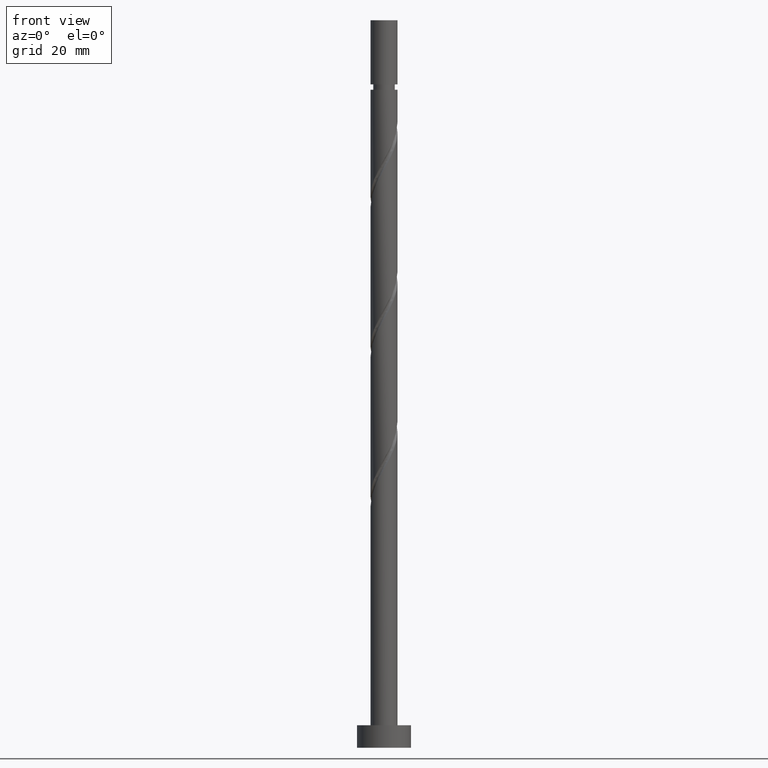
[diagram: clean part render]
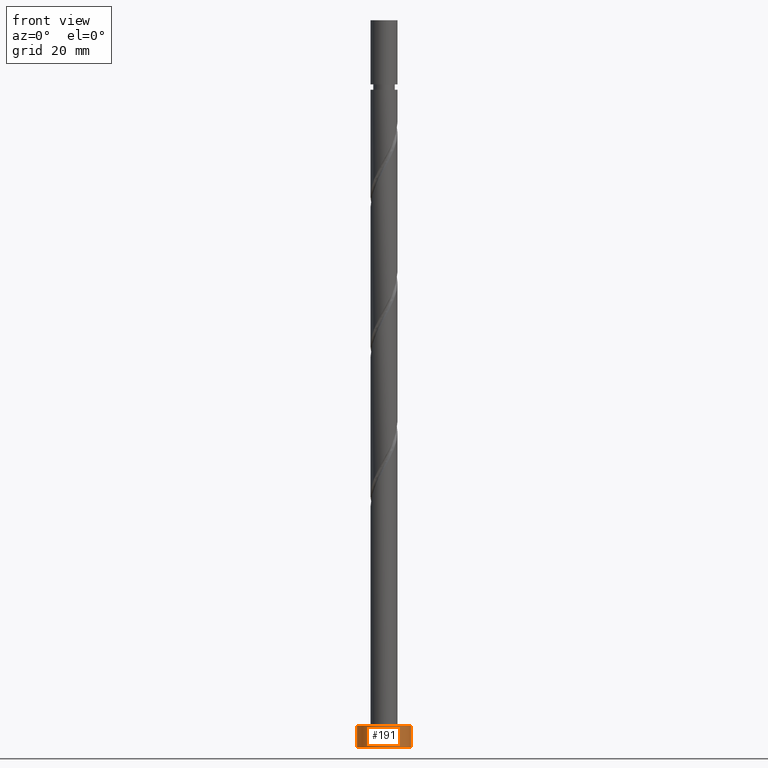
[diagram: same view with one face highlighted and labeled with its STEP entity id]
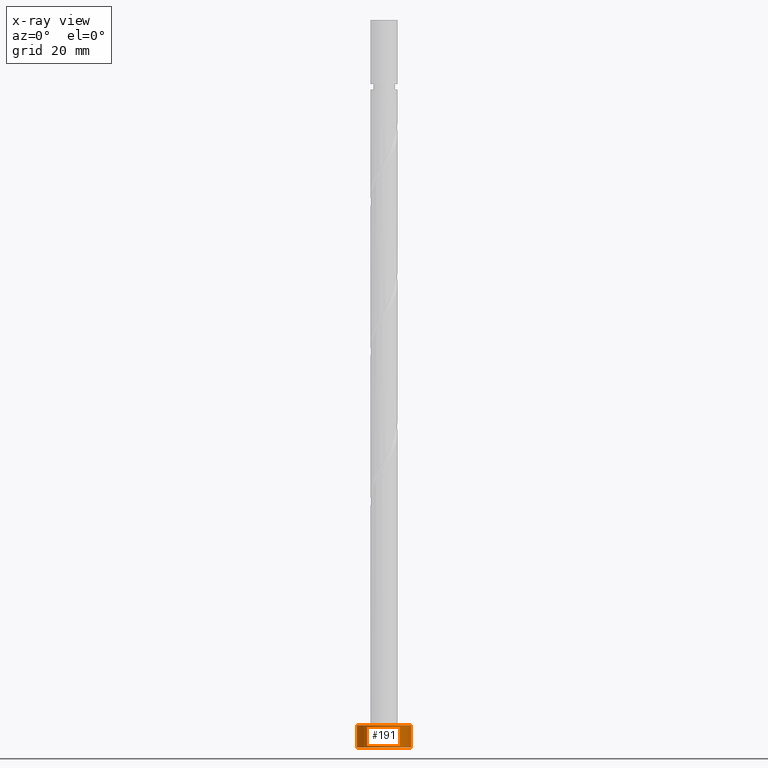
[diagram: x-ray of the same camera — body ghosted, the highlighted face saturated]
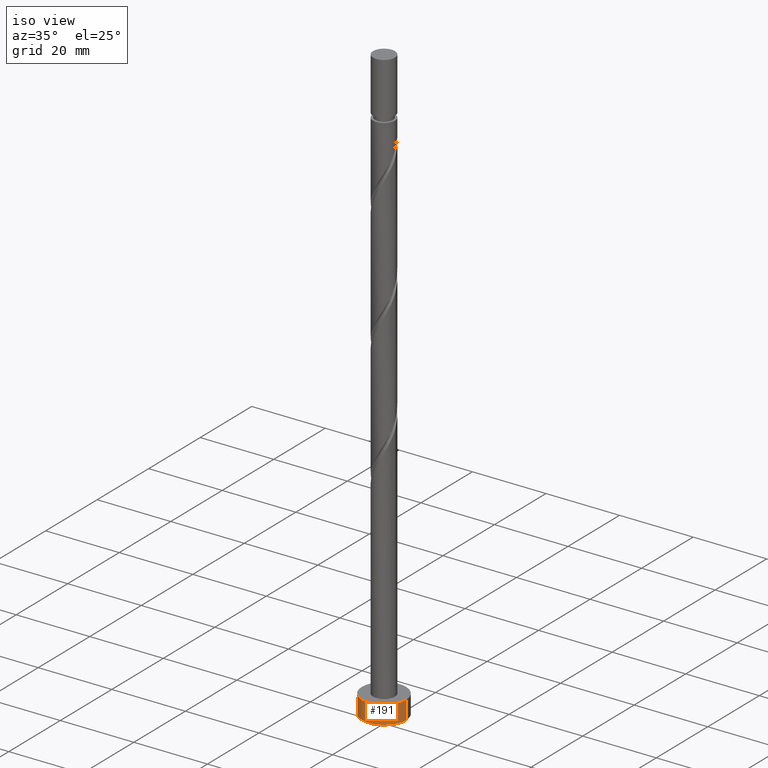
[diagram: same view with one face highlighted and labeled with its STEP entity id]
A machine part, front view. The second image highlights one B-rep face of the part: STEP entity #191.
The next image is the same camera in x-ray: the body ghosted, the highlighted face saturated — about 0% of this face is hidden behind the body in this view.
A second angle (iso view) of the same face is appended — the face is thin or edge-on in the first view.
In plain terms, the highlighted cylindrical surface (edge-blend (fillet) strip) has radius 6 mm, axis along (-0, -0, -1).
Its self-contained STEP definition (entity closure, byte-faithful):
#13 = VERTEX_POINT ( 'NONE', #1119 ) ;
#140 = EDGE_CURVE ( 'NONE', #872, #1266, #1082, .T. ) ;
#191 = ADVANCED_FACE ( 'NONE', ( #1237 ), #944, .T. ) ;
#206 = VERTEX_POINT ( 'NONE', #790 ) ;
#211 = DIRECTION ( 'NONE',  ( 0.000000000000000000, 0.000000000000000000, 1.000000000000000000 ) ) ;
#274 = DIRECTION ( 'NONE',  ( -1.000000000000000000, 0.000000000000000000, 0.000000000000000000 ) ) ;
#323 = ORIENTED_EDGE ( 'NONE', *, *, #1290, .T. ) ;
#341 = EDGE_LOOP ( 'NONE', ( #950, #350, #323, #752 ) ) ;
#347 = EDGE_CURVE ( 'NONE', #13, #872, #850, .T. ) ;
#350 = ORIENTED_EDGE ( 'NONE', *, *, #347, .F. ) ;
#364 = AXIS2_PLACEMENT_3D ( 'NONE', #605, #211, #1136 ) ;
#381 = DIRECTION ( 'NONE',  ( 0.000000000000000000, 0.000000000000000000, 1.000000000000000000 ) ) ;
#397 = LINE ( 'NONE', #1743, #1157 ) ;
#411 = DIRECTION ( 'NONE',  ( -0.000000000000000000, -0.000000000000000000, -1.000000000000000000 ) ) ;
#421 = VECTOR ( 'NONE', #1228, 1000.000000000000000 ) ;
#517 = DIRECTION ( 'NONE',  ( 1.000000000000000000, 0.000000000000000000, 0.000000000000000000 ) ) ;
#605 = CARTESIAN_POINT ( 'NONE',  ( 0.000000000000000000, 0.000000000000000000, 0.000000000000000000 ) ) ;
#654 = CARTESIAN_POINT ( 'NONE',  ( 0.000000000000000000, 0.000000000000000000, 5.000000000000000000 ) ) ;
#669 = DIRECTION ( 'NONE',  ( -0.000000000000000000, -0.000000000000000000, -1.000000000000000000 ) ) ;
#752 = ORIENTED_EDGE ( 'NONE', *, *, #1090, .T. ) ;
#790 = CARTESIAN_POINT ( 'NONE',  ( -6.000000000000000888, 0.000000000000000000, 0.000000000000000000 ) ) ;
#831 = CARTESIAN_POINT ( 'NONE',  ( 6.000000000000000888, 7.347880794884120722E-16, 5.000000000000000000 ) ) ;
#848 = CIRCLE ( 'NONE', #364, 6.000000000000000888 ) ;
#850 = CIRCLE ( 'NONE', #1071, 6.000000000000000888 ) ;
#868 = CARTESIAN_POINT ( 'NONE',  ( 6.000000000000000888, 7.347880794884120722E-16, 0.000000000000000000 ) ) ;
#872 = VERTEX_POINT ( 'NONE', #966 ) ;
#934 = AXIS2_PLACEMENT_3D ( 'NONE', #1615, #411, #274 ) ;
#944 = CYLINDRICAL_SURFACE ( 'NONE', #934, 6.000000000000000888 ) ;
#950 = ORIENTED_EDGE ( 'NONE', *, *, #140, .F. ) ;
#966 = CARTESIAN_POINT ( 'NONE',  ( 6.000000000000000888, 7.347880794884120722E-16, 5.000000000000000000 ) ) ;
#1071 = AXIS2_PLACEMENT_3D ( 'NONE', #654, #381, #517 ) ;
#1082 = LINE ( 'NONE', #831, #421 ) ;
#1090 = EDGE_CURVE ( 'NONE', #206, #1266, #848, .T. ) ;
#1119 = CARTESIAN_POINT ( 'NONE',  ( -6.000000000000000888, 0.000000000000000000, 5.000000000000000000 ) ) ;
#1136 = DIRECTION ( 'NONE',  ( 1.000000000000000000, 0.000000000000000000, 0.000000000000000000 ) ) ;
#1157 = VECTOR ( 'NONE', #669, 1000.000000000000000 ) ;
#1228 = DIRECTION ( 'NONE',  ( -0.000000000000000000, -0.000000000000000000, -1.000000000000000000 ) ) ;
#1237 = FACE_OUTER_BOUND ( 'NONE', #341, .T. ) ;
#1266 = VERTEX_POINT ( 'NONE', #868 ) ;
#1290 = EDGE_CURVE ( 'NONE', #13, #206, #397, .T. ) ;
#1615 = CARTESIAN_POINT ( 'NONE',  ( 0.000000000000000000, 0.000000000000000000, 5.000000000000000000 ) ) ;
#1743 = CARTESIAN_POINT ( 'NONE',  ( -6.000000000000000888, 0.000000000000000000, 5.000000000000000000 ) ) ;